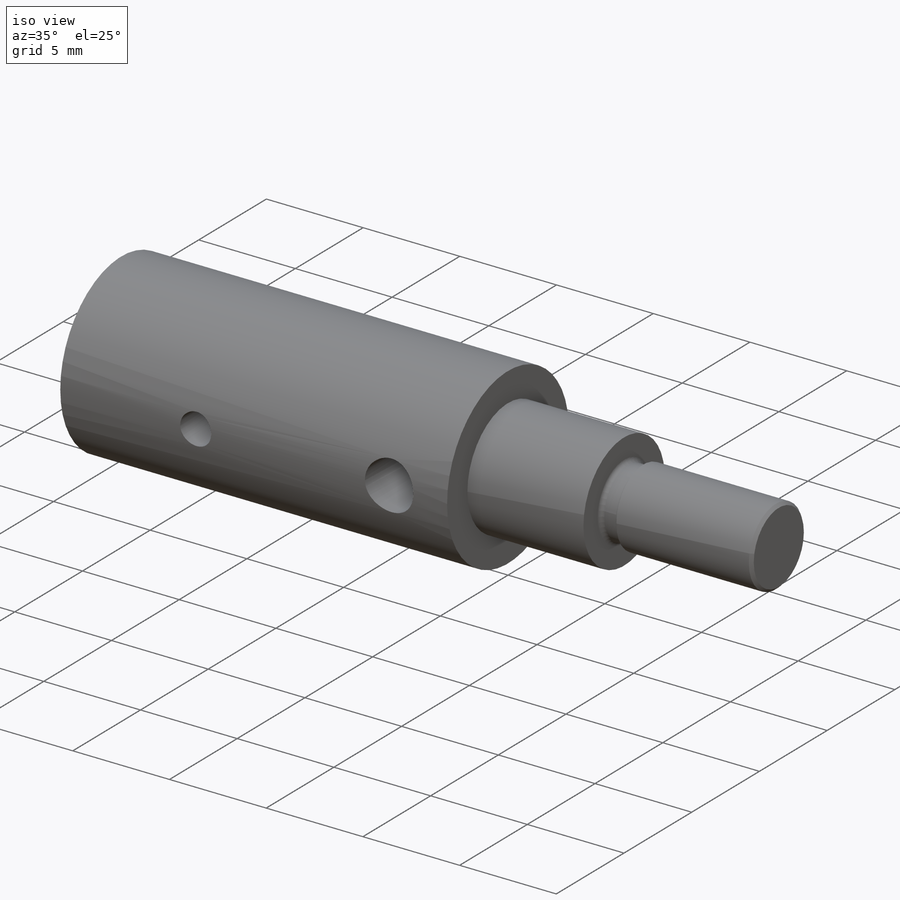
[diagram: iso view]
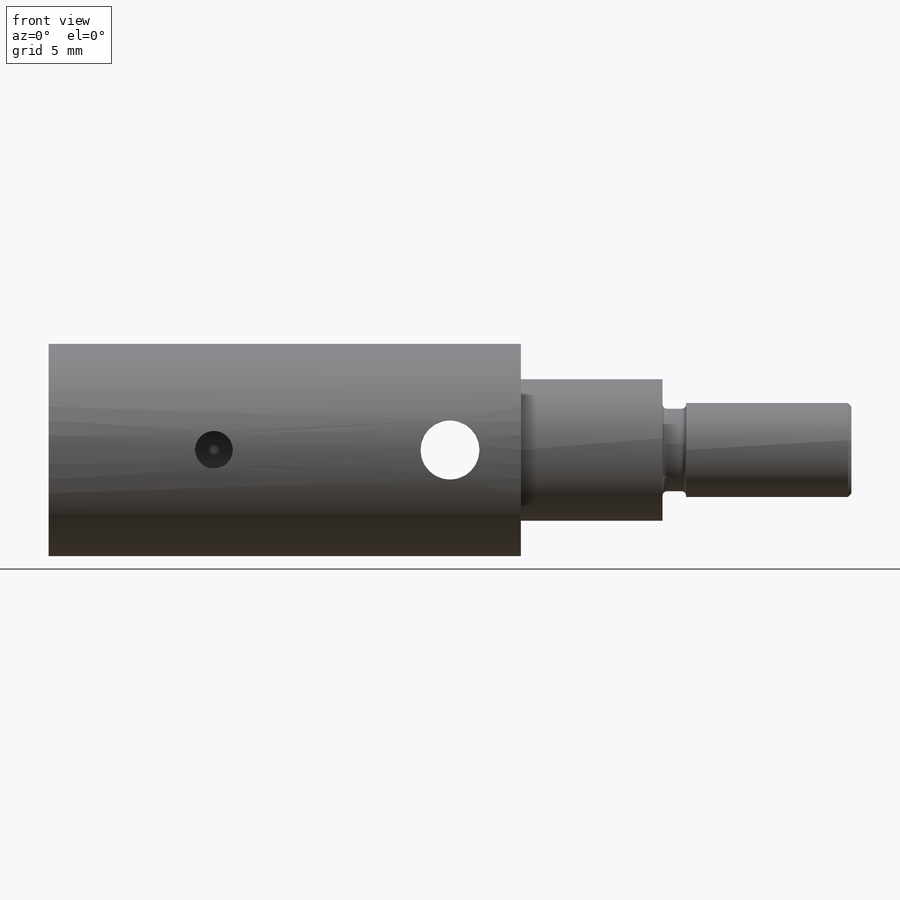
[diagram: front view]
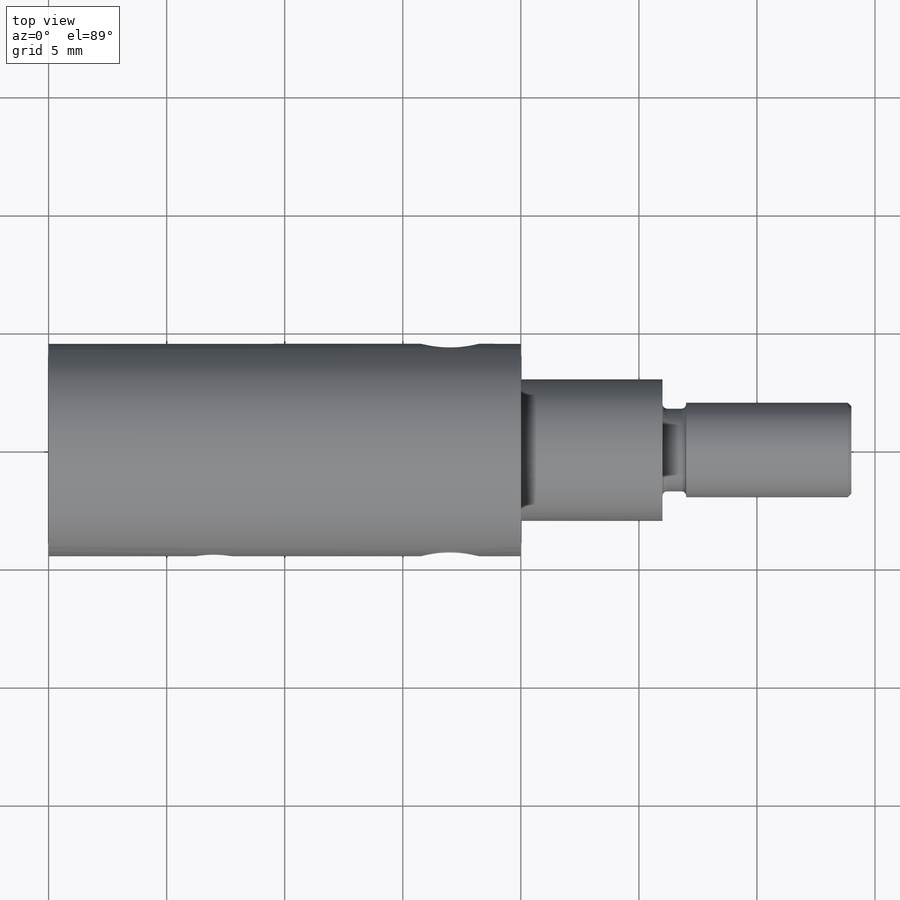
[diagram: top view]
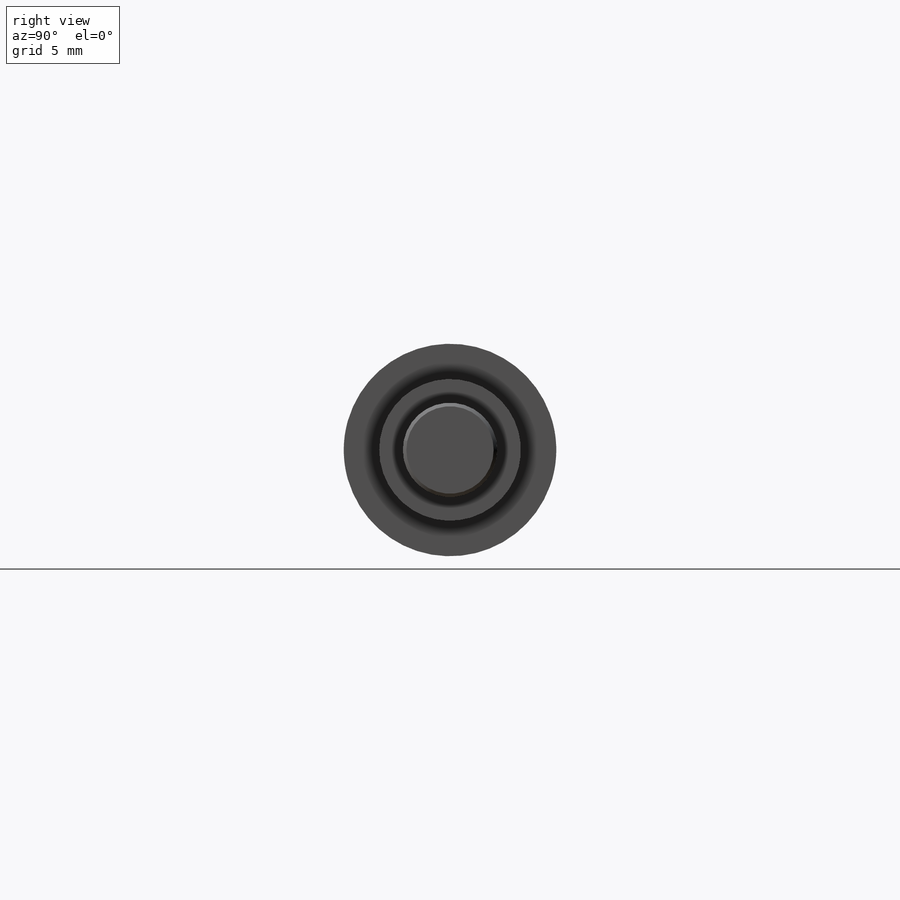
[diagram: right view]
SOLIDWORKS PART (.sldprt)
format: sldprt  version: not decoded by parser v0  size: 360,448 bytes
history: native  units: mm
features: sketch x5, plane x4, fillet x2, material x1, revolve x1, thread x1, chamfer x1, cut_revolve x1, hole x1, cut_extrude x1, move_body x1 (+9 scaffold rows collapsed; 1 parser-record rows omitted)
feature tree (29):
  scaffold x9  (default folders/planes/origin — collapsed)
  material  "3.0205 (EN-AW 1200)"
  plane  "Vorne"
  plane  "Oben"
  plane  "Rechts"
  sketch  "Skizze1"  dims[c1.D1=4.0mm c1.D2=6.0mm c1.D3=6.0mm c1.D4=~8.669781mm c2.D4=59.0deg c2.D5=14.0mm c2.D6=9.0mm c2.D7=20.0mm c2.D8=8.0mm c2.D9=4.0mm]
  revolve  "Rotation1"  [1 undecoded]
  thread  "Gewindedarstellung1"  Diameter=3.76mm  [1 undecoded]
  plane  "Ebene1"
  chamfer  "Fase1"  Distance=0.15mm Angle=45deg
  sketch  "Skizze2"  dims[D1=3.5mm D2=0.5mm D3=1.0mm]
  cut_revolve  "Schnitt-Rotation1"  Angle=360deg
  fillet  "Verrundung1"  Radius=0.2mm
  hole  "M2 Gewindebohrung1"  Diameter=1.6mm Depth=4.5mm
  sketch  "Skizze6"  dims[D1=7.0mm]
  sketch  "Skizze5"  dims[hole-wizard template sketch: 59 standard entries collapsed; hole parameters kept: c18.Nenndurchmesser (Haupt)=1.6mm c18.Bohrungstiefe=4.5mm]
  fillet  "Gewindedarstellung2"  Radius=2mm
  sketch  "Skizze7"  dims[D1=2.5mm D2=17.0mm]
  cut_extrude  "Schnitt-Linear austragen2"  [1 undecoded]
  parser-record x1  (decoder bookkeeping rows leaked as tree rows — omitted from the tree; the rows remain in map.json)
  move_body  "Körper-Verschieben/Kopieren1"
decode coverage: 11 of 14 modeling features carry decoded parameters
note: ~ marks probable driven/reference dimensions
note: 3 parameter values undecoded
note: suppression state not decoded; provenance and decode notes live in map.json
